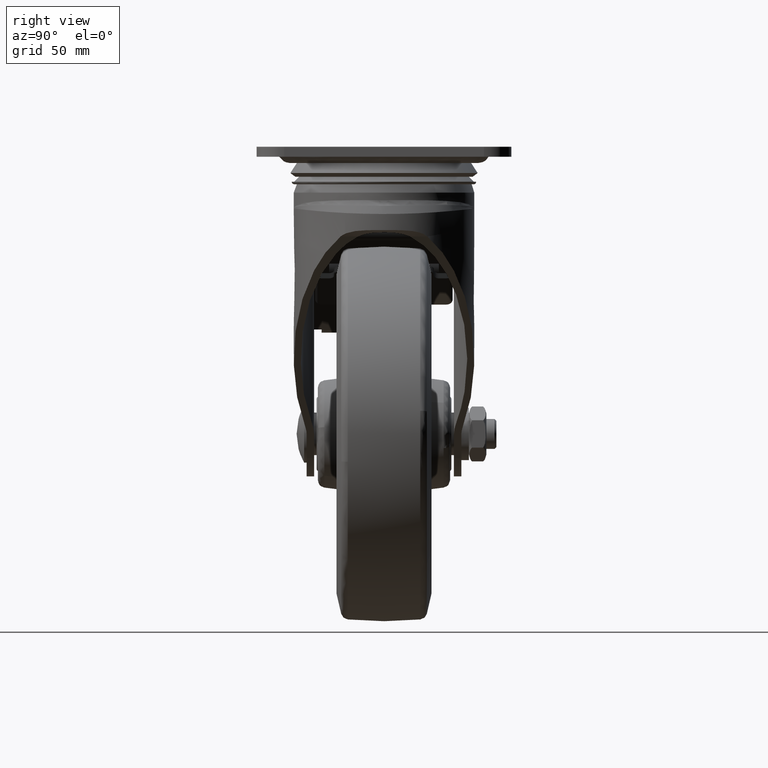
[diagram: clean part render]
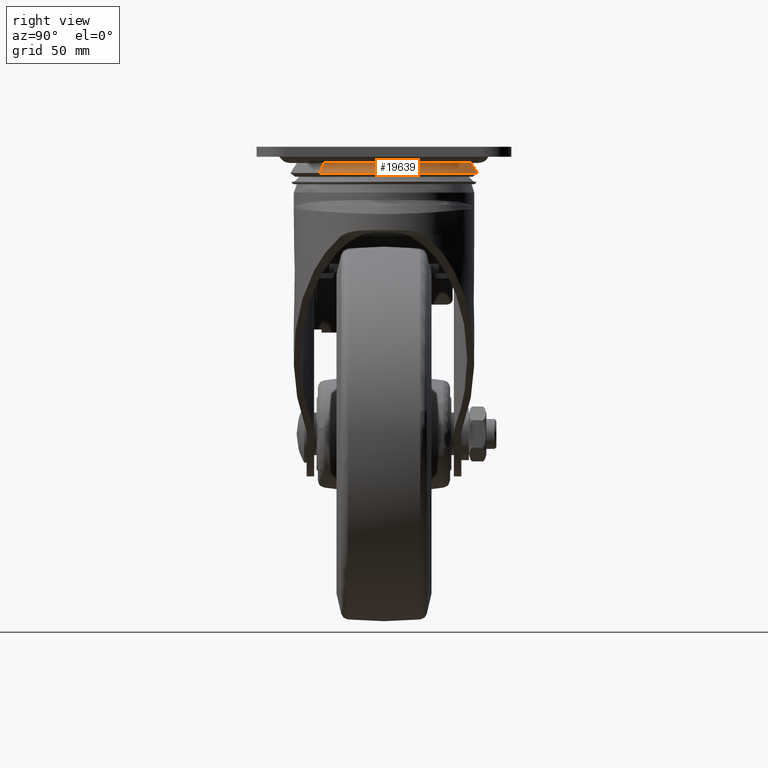
[diagram: same view with one face highlighted and labeled with its STEP entity id]
A machine part, right view. The second image highlights one B-rep face of the part: STEP entity #19639.
In plain terms, the highlighted face is a freeform B-spline surface patch.
Its self-contained STEP definition (entity closure, byte-faithful):
#19372=CARTESIAN_POINT('',(25.334645569570689,27.647914081649770,-10.499993838715000));
#19373=VERTEX_POINT('',#19372);
#19379=CARTESIAN_POINT('',(37.500017762155551,0.0,-10.499994178383419));
#19380=VERTEX_POINT('',#19379);
#19381=CARTESIAN_POINT('',(25.334645569570689,27.647914081649770,-10.499993838715000));
#19382=CARTESIAN_POINT('',(27.364469457524908,25.788564434630270,-10.499993861558030));
#19383=CARTESIAN_POINT('',(30.153180607876930,22.600833420791631,-10.499993900720900));
#19384=CARTESIAN_POINT('',(33.504838391280579,17.140658800277858,-10.499993967801940));
#19385=CARTESIAN_POINT('',(35.553255102922243,12.359772615039740,-10.499994026537410));
#19386=CARTESIAN_POINT('',(37.113157685994643,6.395741781507662,-10.499994099808630));
#19387=CARTESIAN_POINT('',(37.500351939944260,2.428831407644198,-10.499994148543960));
#19388=CARTESIAN_POINT('',(37.500017762155551,0.0,-10.499994178383419));
#19389=B_SPLINE_CURVE_WITH_KNOTS('',3,(#19381,#19382,#19383,#19384,#19385,#19386,#19387,#19388),.UNSPECIFIED.,.F.,.U.,(4,1,1,1,1,4),(0.000000035255272,8.257951305659308,12.629818906844809,19.187576874029631,23.802323109640248,31.088746845948531),.UNSPECIFIED.);
#19390=EDGE_CURVE('',#19373,#19380,#19389,.T.);
#19392=CARTESIAN_POINT('',(27.201551130846909,-25.813308182856790,-10.499993854897580));
#19393=VERTEX_POINT('',#19392);
#19394=CARTESIAN_POINT('',(37.500017762155551,0.0,-10.499994178383419));
#19395=CARTESIAN_POINT('',(37.500471818068739,-2.669174588972904,-10.499994144934050));
#19396=CARTESIAN_POINT('',(37.030865894341098,-7.043348396847535,-10.499994090117911));
#19397=CARTESIAN_POINT('',(35.233297936793122,-13.253880529173690,-10.499994012289189));
#19398=CARTESIAN_POINT('',(32.361517953710717,-19.466972503519781,-10.499993934428220));
#19399=CARTESIAN_POINT('',(29.294645051359499,-23.608756282144139,-10.499993882524510));
#19400=CARTESIAN_POINT('',(27.201551130846909,-25.813308182856790,-10.499993854897580));
#19401=B_SPLINE_CURVE_WITH_KNOTS('',3,(#19394,#19395,#19396,#19397,#19398,#19399,#19400),.UNSPECIFIED.,.F.,.U.,(4,1,1,1,4),(0.000000029690362,8.007396399652581,13.123238973829331,19.351203559154619,28.470738294234181),.UNSPECIFIED.);
#19402=EDGE_CURVE('',#19380,#19393,#19401,.T.);
#19418=CARTESIAN_POINT('',(-24.215338494842189,-28.633350865274728,-10.499994497817010));
#19419=VERTEX_POINT('',#19418);
#19431=CARTESIAN_POINT('',(-37.500017762155551,0.0,-10.499994178383419));
#19432=VERTEX_POINT('',#19431);
#19433=CARTESIAN_POINT('',(-24.215338494842189,-28.633350865274728,-10.499994497817010));
#19434=CARTESIAN_POINT('',(-26.029411425500200,-27.099464926648409,-10.499994480705009));
#19435=CARTESIAN_POINT('',(-29.305046410094370,-23.746384951866609,-10.499994443298030));
#19436=CARTESIAN_POINT('',(-32.656096969780172,-18.710146641497261,-10.499994387113709));
#19437=CARTESIAN_POINT('',(-35.014371672553693,-13.715921574542310,-10.499994331398280));
#19438=CARTESIAN_POINT('',(-36.922354414010570,-7.805357266489548,-10.499994265459820));
#19439=CARTESIAN_POINT('',(-37.500792279936590,-2.969621266174764,-10.499994211512711));
#19440=CARTESIAN_POINT('',(-37.500017762155551,0.0,-10.499994178383419));
#19441=B_SPLINE_CURVE_WITH_KNOTS('',3,(#19433,#19434,#19435,#19436,#19437,#19438,#19439,#19440),.UNSPECIFIED.,.F.,.U.,(4,1,1,1,1,4),(0.000000038590144,7.126900094205610,13.999311034467009,18.071788645964240,23.671503235391270,32.580139219889013),.UNSPECIFIED.);
#19442=EDGE_CURVE('',#19419,#19432,#19441,.T.);
#19444=CARTESIAN_POINT('',(-26.153711290349190,26.874423353120740,-10.499994519223391));
#19445=VERTEX_POINT('',#19444);
#19446=CARTESIAN_POINT('',(-37.500017762155551,0.0,-10.499994178383419));
#19447=CARTESIAN_POINT('',(-37.500130464141670,1.950661908517607,-10.499994203123061));
#19448=CARTESIAN_POINT('',(-37.207120257994241,5.695887172028537,-10.499994250622549));
#19449=CARTESIAN_POINT('',(-35.882054780602473,11.411375986099490,-10.499994323110389));
#19450=CARTESIAN_POINT('',(-33.917101792249852,16.275829398274389,-10.499994384804680));
#19451=CARTESIAN_POINT('',(-30.804514218969349,21.696707126182801,-10.499994453555990));
#19452=CARTESIAN_POINT('',(-28.167233465421251,24.915775127023629,-10.499994494382500));
#19453=CARTESIAN_POINT('',(-26.153711290349190,26.874423353120740,-10.499994519223391));
#19454=B_SPLINE_CURVE_WITH_KNOTS('',3,(#19446,#19447,#19448,#19449,#19450,#19451,#19452,#19453),.UNSPECIFIED.,.F.,.U.,(4,1,1,1,1,4),(0.000000033576349,5.851977320807418,11.235816131556430,17.555927437459601,21.535279174353029,29.962129345507901),.UNSPECIFIED.);
#19455=EDGE_CURVE('',#19432,#19445,#19454,.T.);
#19492=CARTESIAN_POINT('',(0.000002841382518,37.500017762155437,-10.499994178383419));
#19493=VERTEX_POINT('',#19492);
#19494=CARTESIAN_POINT('',(-26.153711290349190,26.874423353120740,-10.499994519223391));
#19495=CARTESIAN_POINT('',(-24.857410189854900,28.136102714043730,-10.499994502329720));
#19496=CARTESIAN_POINT('',(-22.255158031423520,30.325272719612268,-10.499994468416830));
#19497=CARTESIAN_POINT('',(-17.722917845792932,33.190809096866708,-10.499994409351681));
#19498=CARTESIAN_POINT('',(-12.550311778508030,35.513817339541859,-10.499994341941489));
#19499=CARTESIAN_POINT('',(-6.481937695301034,37.123346811144572,-10.499994262857321));
#19500=CARTESIAN_POINT('',(-2.185794392085648,37.500211381987512,-10.499994206869079));
#19501=CARTESIAN_POINT('',(0.000002841382518,37.500017762155437,-10.499994178383419));
#19502=B_SPLINE_CURVE_WITH_KNOTS('',3,(#19494,#19495,#19496,#19497,#19498,#19499,#19500,#19501),.UNSPECIFIED.,.F.,.U.,(4,1,1,1,1,4),(0.000000030209105,5.426781726485626,10.175226118541181,16.054208812769470,22.385491181303671,28.942855224460558),.UNSPECIFIED.);
#19503=EDGE_CURVE('',#19445,#19493,#19502,.T.);
#19505=CARTESIAN_POINT('',(0.000002841382518,37.500017762155437,-10.499994178383419));
#19506=CARTESIAN_POINT('',(2.680249646209362,37.500474279442521,-10.499994142448591));
#19507=CARTESIAN_POINT('',(7.026341737329094,37.031993664221993,-10.499994084179450));
#19508=CARTESIAN_POINT('',(12.187832255511900,35.541676506674982,-10.499994014977849));
#19509=CARTESIAN_POINT('',(16.079703066123340,33.949763736321472,-10.499993962798509));
#19510=CARTESIAN_POINT('',(20.434750343780038,31.628790115741889,-10.499993904409269));
#19511=CARTESIAN_POINT('',(23.572377312556451,29.263084440283009,-10.499993862342251));
#19512=CARTESIAN_POINT('',(25.334645569570689,27.647914081649770,-10.499993838715000));
#19513=B_SPLINE_CURVE_WITH_KNOTS('',3,(#19505,#19506,#19507,#19508,#19509,#19510,#19511,#19512),.UNSPECIFIED.,.F.,.U.,(4,1,1,1,1,4),(0.000000028189746,8.040631255681610,13.038894050202540,16.081255846635919,20.644860522286699,27.816234639909521),.UNSPECIFIED.);
#19514=EDGE_CURVE('',#19493,#19373,#19513,.T.);
#19531=CARTESIAN_POINT('',(-22.502959958739257,-26.608554249326335,-6.399998095540414));
#19532=CARTESIAN_POINT('',(-23.264485349546881,-25.964529203232697,-6.399998095540413));
#19533=CARTESIAN_POINT('',(-23.987930990312101,-25.278004924202161,-6.399998095540413));
#19534=CARTESIAN_POINT('',(-49.265935914514259,-1.290073933890056,-6.399998095540413));
#19535=CARTESIAN_POINT('',(-25.278004924202161,23.987930990312101,-6.399998095540413));
#19536=CARTESIAN_POINT('',(-1.290073933890056,49.265935914514259,-6.399998095540413));
#19537=CARTESIAN_POINT('',(23.987930990312101,25.278004924202161,-6.399998095540413));
#19538=CARTESIAN_POINT('',(49.265935914514259,1.290073933890056,-6.399998095540413));
#19539=CARTESIAN_POINT('',(25.278004924202161,-23.987930990312101,-6.399998095540413));
#19540=CARTESIAN_POINT('',(-24.258147357855428,-28.683970070744930,-10.602494080454493));
#19541=CARTESIAN_POINT('',(-25.079070257813104,-27.989712315368099,-10.602494080454496));
#19542=CARTESIAN_POINT('',(-25.858943260798451,-27.249640468997480,-10.602494080454500));
#19543=CARTESIAN_POINT('',(-53.108583729795946,-1.390697208199033,-10.602494080454495));
#19544=CARTESIAN_POINT('',(-27.249640468997480,25.858943260798451,-10.602494080454500));
#19545=CARTESIAN_POINT('',(-1.390697208199033,53.108583729795946,-10.602494080454495));
#19546=CARTESIAN_POINT('',(25.858943260798451,27.249640468997480,-10.602494080454500));
#19547=CARTESIAN_POINT('',(53.108583729795946,1.390697208199033,-10.602494080454495));
#19548=CARTESIAN_POINT('',(27.249640468997480,-25.858943260798451,-10.602494080454500));
#19556=(BOUNDED_SURFACE()B_SPLINE_SURFACE(2,1,((#19531,#19540),(#19532,#19541),(#19533,#19542),(#19534,#19543),(#19535,#19544),(#19536,#19545),(#19537,#19546),(#19538,#19547),(#19539,#19548)),.UNSPECIFIED.,.F.,.F.,.U.)B_SPLINE_SURFACE_WITH_KNOTS((3,2,2,2,3),(2,2),(0.0,2.489676195490137,64.731581082743489,126.973485969996800,189.215390857250210),(0.0,5.004898214852110),.UNSPECIFIED.)GEOMETRIC_REPRESENTATION_ITEM()RATIONAL_B_SPLINE_SURFACE(((0.977505800795127,0.977505800795127),(0.988284271247462,0.988284271247462),(1.0,1.0),(0.707106781186548,0.707106781186548),(1.0,1.0),(0.707106781186548,0.707106781186548),(1.0,1.0),(0.707106781186548,0.707106781186548),(1.0,1.0)))REPRESENTATION_ITEM('')SURFACE());
#19557=ORIENTED_EDGE('',*,*,#19442,.F.);
#19558=CARTESIAN_POINT('',(-22.544725879325199,-26.657940230802659,-6.499998329783085));
#19559=VERTEX_POINT('',#19558);
#19560=CARTESIAN_POINT('',(-22.544725879325199,-26.657940230802659,-6.499998329783085));
#19561=CARTESIAN_POINT('',(-24.215338494842189,-28.633350865274728,-10.499994497817010));
#19562=QUASI_UNIFORM_CURVE('',1,(#19560,#19561),.UNSPECIFIED.,.F.,.U.);
#19563=EDGE_CURVE('',#19559,#19419,#19562,.T.);
#19564=ORIENTED_EDGE('',*,*,#19563,.F.);
#19565=CARTESIAN_POINT('',(-34.912896999999887,0.0,-6.499998000000000));
#19566=VERTEX_POINT('',#19565);
#19567=CARTESIAN_POINT('',(-22.544725879325199,-26.657940230802659,-6.499998329783085));
#19568=CARTESIAN_POINT('',(-24.354385328106709,-25.127962231006229,-6.499998310855841));
#19569=CARTESIAN_POINT('',(-27.053929436875961,-22.326314410051229,-6.499998276196929));
#19570=CARTESIAN_POINT('',(-29.872440847684789,-18.212433478901922,-6.499998225304449));
#19571=CARTESIAN_POINT('',(-31.914426673642861,-14.372183631646619,-6.499998177797095));
#19572=CARTESIAN_POINT('',(-33.475754545837411,-10.304977969805410,-6.499998127481945));
#19573=CARTESIAN_POINT('',(-34.635529749692637,-5.292330771400906,-6.499998065470988));
#19574=CARTESIAN_POINT('',(-34.913040066144752,-1.895779415518800,-6.499998023452534));
#19575=CARTESIAN_POINT('',(-34.912896999999887,0.0,-6.499998000000000));
#19576=B_SPLINE_CURVE_WITH_KNOTS('',3,(#19567,#19568,#19569,#19570,#19571,#19572,#19573,#19574,#19575),.UNSPECIFIED.,.F.,.U.,(4,1,1,1,1,1,4),(0.000000041409898,7.109164315912299,11.611647276946041,14.929288732300691,20.142628454847571,24.645113495321631,30.332440201555130),.UNSPECIFIED.);
#19577=EDGE_CURVE('',#19559,#19566,#19576,.T.);
#19578=ORIENTED_EDGE('',*,*,#19577,.T.);
#19579=CARTESIAN_POINT('',(0.000002933440323,34.912896999999766,-6.499997999999999));
#19580=VERTEX_POINT('',#19579);
#19581=CARTESIAN_POINT('',(-34.912896999999887,0.0,-6.499998000000000));
#19582=CARTESIAN_POINT('',(-34.913019973973093,1.927996279446409,-6.499997999999961));
#19583=CARTESIAN_POINT('',(-34.598604660108300,5.712546805788914,-6.499998000000064));
#19584=CARTESIAN_POINT('',(-33.084570314726832,11.758143071442170,-6.499997999999989));
#19585=CARTESIAN_POINT('',(-30.423689877766741,17.567726928150421,-6.499997999999991));
#19586=CARTESIAN_POINT('',(-26.785253245438110,22.633612213009819,-6.499998000000039));
#19587=CARTESIAN_POINT('',(-22.481772884002599,26.937267256734611,-6.499998000000003));
#19588=CARTESIAN_POINT('',(-17.964743428952470,30.118470433829660,-6.499997999999916));
#19589=CARTESIAN_POINT('',(-12.490539841702860,32.769602739185729,-6.499998000000264));
#19590=CARTESIAN_POINT('',(-6.712257123477668,34.483681248397353,-6.499997999999390));
#19591=CARTESIAN_POINT('',(-2.213640140088575,34.913124756817332,-6.499998000000651));
#19592=CARTESIAN_POINT('',(0.000002933440323,34.912896999999766,-6.499997999999999));
#19593=B_SPLINE_CURVE_WITH_KNOTS('',3,(#19581,#19582,#19583,#19584,#19585,#19586,#19587,#19588,#19589,#19590,#19591,#19592),.UNSPECIFIED.,.F.,.U.,(4,1,1,1,1,1,1,1,1,4),(0.000000125916998,5.783978852589804,11.353823616476109,18.637444211409921,24.849959900600560,29.991178280853990,36.846384301832742,41.345077969422817,48.200232928689033,54.841138048400218),.UNSPECIFIED.);
#19594=EDGE_CURVE('',#19566,#19580,#19593,.T.);
#19595=ORIENTED_EDGE('',*,*,#19594,.T.);
#19596=CARTESIAN_POINT('',(34.912896999999887,0.0,-6.499998000000000));
#19597=VERTEX_POINT('',#19596);
#19598=CARTESIAN_POINT('',(0.000002933440323,34.912896999999766,-6.499997999999999));
#19599=CARTESIAN_POINT('',(2.713552550768335,34.913455131273452,-6.499997999999980));
#19600=CARTESIAN_POINT('',(6.712077142620956,34.444291676105067,-6.499998000000073));
#19601=CARTESIAN_POINT('',(12.814302056147771,32.633994331061800,-6.499997999999930));
#19602=CARTESIAN_POINT('',(17.284661849189419,30.502959224704039,-6.499998000000140));
#19603=CARTESIAN_POINT('',(21.766420261037940,27.427823856505139,-6.499997999999940));
#19604=CARTESIAN_POINT('',(24.959178663437640,24.551924726362031,-6.499998000000068));
#19605=CARTESIAN_POINT('',(28.216945046407190,20.751832290202909,-6.499997999999949));
#19606=CARTESIAN_POINT('',(30.578534349587621,17.072606161895511,-6.499998000000023));
#19607=CARTESIAN_POINT('',(32.871621235116727,12.146584605265749,-6.499998000000039));
#19608=CARTESIAN_POINT('',(34.483712872037323,6.712278599932449,-6.499997999999827));
#19609=CARTESIAN_POINT('',(34.913126446159211,2.213639282359506,-6.499998000000206));
#19610=CARTESIAN_POINT('',(34.912896999999887,0.0,-6.499998000000000));
#19611=B_SPLINE_CURVE_WITH_KNOTS('',3,(#19598,#19599,#19600,#19601,#19602,#19603,#19604,#19605,#19606,#19607,#19608,#19609,#19610),.UNSPECIFIED.,.F.,.U.,(4,1,1,1,1,1,1,1,1,1,4),(0.000000126177348,8.140478714450453,11.996496256782390,19.065872547193269,22.921893449596261,28.277381028603799,31.919249856572439,37.917500576750847,41.345075476269308,48.200230021627483,54.841134741724098),.UNSPECIFIED.);
#19612=EDGE_CURVE('',#19580,#19597,#19611,.T.);
#19613=ORIENTED_EDGE('',*,*,#19612,.T.);
#19614=CARTESIAN_POINT('',(25.324920013676760,-24.032451747867771,-6.499997666033385));
#19615=VERTEX_POINT('',#19614);
#19616=CARTESIAN_POINT('',(34.912896999999887,0.0,-6.499998000000000));
#19617=CARTESIAN_POINT('',(34.913087885576182,-2.139859531161224,-6.499997970263454));
#19618=CARTESIAN_POINT('',(34.569130977112039,-5.867263590189953,-6.499997918465700));
#19619=CARTESIAN_POINT('',(33.309272166725300,-10.758340943511360,-6.499997850496829));
#19620=CARTESIAN_POINT('',(31.630982948585650,-15.001545162674850,-6.499997791531234));
#19621=CARTESIAN_POINT('',(29.157204870453992,-19.485377138734979,-6.499997729221821));
#19622=CARTESIAN_POINT('',(26.798066792524821,-22.480408030187888,-6.499997687601258));
#19623=CARTESIAN_POINT('',(25.324920013676760,-24.032451747867771,-6.499997666033385));
#19624=B_SPLINE_CURVE_WITH_KNOTS('',3,(#19616,#19617,#19618,#19619,#19620,#19621,#19622,#19623),.UNSPECIFIED.,.F.,.U.,(4,1,1,1,1,4),(0.000000029456675,6.419553494747387,11.182451278932970,15.116987308285720,20.086993161662189,26.506546171768932),.UNSPECIFIED.);
#19625=EDGE_CURVE('',#19597,#19615,#19624,.T.);
#19626=ORIENTED_EDGE('',*,*,#19625,.T.);
#19627=CARTESIAN_POINT('',(25.324920013676760,-24.032451747867771,-6.499997666033385));
#19628=CARTESIAN_POINT('',(27.201551130846909,-25.813308182856790,-10.499993854897580));
#19629=QUASI_UNIFORM_CURVE('',1,(#19627,#19628),.UNSPECIFIED.,.F.,.U.);
#19630=EDGE_CURVE('',#19615,#19393,#19629,.T.);
#19631=ORIENTED_EDGE('',*,*,#19630,.T.);
#19632=ORIENTED_EDGE('',*,*,#19402,.F.);
#19633=ORIENTED_EDGE('',*,*,#19390,.F.);
#19634=ORIENTED_EDGE('',*,*,#19514,.F.);
#19635=ORIENTED_EDGE('',*,*,#19503,.F.);
#19636=ORIENTED_EDGE('',*,*,#19455,.F.);
#19637=EDGE_LOOP('',(#19557,#19564,#19578,#19595,#19613,#19626,#19631,#19632,#19633,#19634,#19635,#19636));
#19638=FACE_OUTER_BOUND('',#19637,.T.);
#19639=ADVANCED_FACE('',(#19638),#19556,.T.);